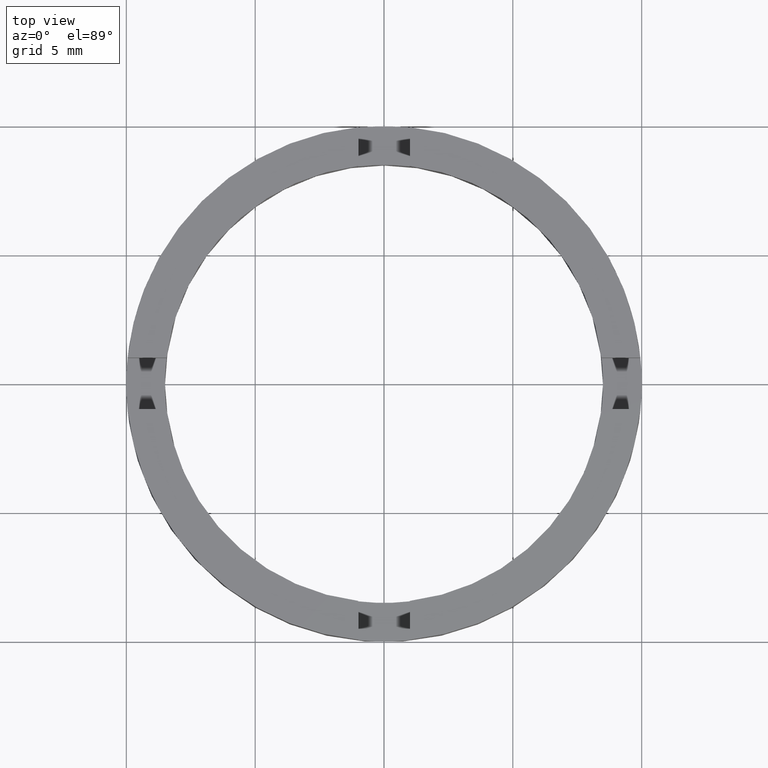
[diagram: clean part render]
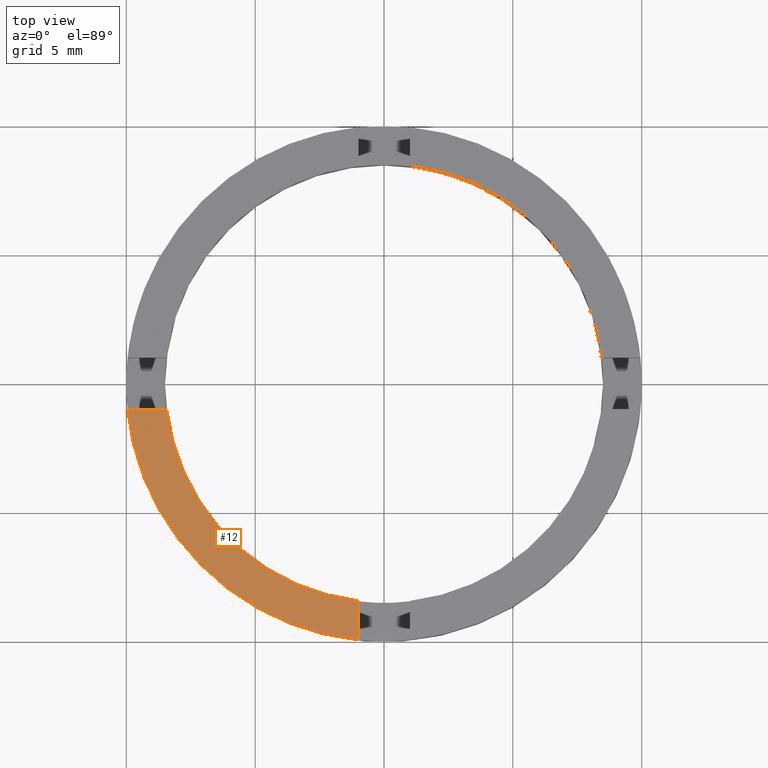
[diagram: same view with one face highlighted and labeled with its STEP entity id]
A machine part, top view. The second image highlights one B-rep face of the part: STEP entity #12.
In plain terms, the highlighted planar face has unit normal (0, 0, 1).
Its self-contained STEP definition (entity closure, byte-faithful):
#12 = ADVANCED_FACE ( 'NONE', ( #147 ), #344, .T. ) ;
#63 = DIRECTION ( 'NONE',  ( 0.000000000000000000, 1.000000000000000000, -0.000000000000000000 ) ) ;
#83 = DIRECTION ( 'NONE',  ( 1.000000000000000000, 0.000000000000000000, -0.000000000000000000 ) ) ;
#108 = VERTEX_POINT ( 'NONE', #371 ) ;
#147 = FACE_OUTER_BOUND ( 'NONE', #549, .T. ) ;
#172 = VECTOR ( 'NONE', #63, 1000.000000000000000 ) ;
#175 = AXIS2_PLACEMENT_3D ( 'NONE', #242, #304, #600 ) ;
#242 = CARTESIAN_POINT ( 'NONE',  ( 0.000000000000000000, 0.000000000000000000, 2.500000000000000000 ) ) ;
#304 = DIRECTION ( 'NONE',  ( 0.000000000000000000, 0.000000000000000000, 1.000000000000000000 ) ) ;
#315 = AXIS2_PLACEMENT_3D ( 'NONE', #625, #488, #773 ) ;
#329 = CARTESIAN_POINT ( 'NONE',  ( 0.000000000000000000, 0.000000000000000000, 2.500000000000000000 ) ) ;
#344 = PLANE ( 'NONE',  #770 ) ;
#352 = ORIENTED_EDGE ( 'NONE', *, *, #577, .T. ) ;
#371 = CARTESIAN_POINT ( 'NONE',  ( -0.9999999999999986677, -8.440971508067066864, 2.500000000000000000 ) ) ;
#382 = LINE ( 'NONE', #691, #665 ) ;
#427 = DIRECTION ( 'NONE',  ( 0.000000000000000000, 0.000000000000000000, 1.000000000000000000 ) ) ;
#435 = CIRCLE ( 'NONE', #315, 10.00000000000000000 ) ;
#450 = ORIENTED_EDGE ( 'NONE', *, *, #746, .T. ) ;
#459 = VERTEX_POINT ( 'NONE', #704 ) ;
#460 = LINE ( 'NONE', #635, #172 ) ;
#488 = DIRECTION ( 'NONE',  ( 0.000000000000000000, 0.000000000000000000, 1.000000000000000000 ) ) ;
#495 = VERTEX_POINT ( 'NONE', #765 ) ;
#522 = VERTEX_POINT ( 'NONE', #754 ) ;
#537 = ORIENTED_EDGE ( 'NONE', *, *, #756, .F. ) ;
#549 = EDGE_LOOP ( 'NONE', ( #605, #352, #450, #537 ) ) ;
#577 = EDGE_CURVE ( 'NONE', #495, #459, #435, .T. ) ;
#600 = DIRECTION ( 'NONE',  ( 1.000000000000000000, 0.000000000000000000, 0.000000000000000000 ) ) ;
#605 = ORIENTED_EDGE ( 'NONE', *, *, #782, .F. ) ;
#625 = CARTESIAN_POINT ( 'NONE',  ( 0.000000000000000000, 0.000000000000000000, 2.500000000000000000 ) ) ;
#635 = CARTESIAN_POINT ( 'NONE',  ( -0.9999999999999986677, 0.000000000000000000, 2.500000000000000000 ) ) ;
#665 = VECTOR ( 'NONE', #762, 1000.000000000000000 ) ;
#691 = CARTESIAN_POINT ( 'NONE',  ( -3.729655473350139197E-15, -1.000000000000001110, 2.500000000000000000 ) ) ;
#704 = CARTESIAN_POINT ( 'NONE',  ( -0.9999999999999986677, -9.949874371066199430, 2.500000000000000000 ) ) ;
#728 = CIRCLE ( 'NONE', #175, 8.500000000000000000 ) ;
#746 = EDGE_CURVE ( 'NONE', #459, #108, #460, .T. ) ;
#754 = CARTESIAN_POINT ( 'NONE',  ( -8.440971508067070417, -0.9999999999999696909, 2.500000000000000000 ) ) ;
#756 = EDGE_CURVE ( 'NONE', #522, #108, #728, .T. ) ;
#762 = DIRECTION ( 'NONE',  ( 1.000000000000000000, -3.729655473350134464E-15, 0.000000000000000000 ) ) ;
#765 = CARTESIAN_POINT ( 'NONE',  ( -9.949874371066202983, -0.9999999999999640288, 2.500000000000000000 ) ) ;
#770 = AXIS2_PLACEMENT_3D ( 'NONE', #329, #427, #83 ) ;
#773 = DIRECTION ( 'NONE',  ( 1.000000000000000000, 0.000000000000000000, 0.000000000000000000 ) ) ;
#782 = EDGE_CURVE ( 'NONE', #495, #522, #382, .T. ) ;